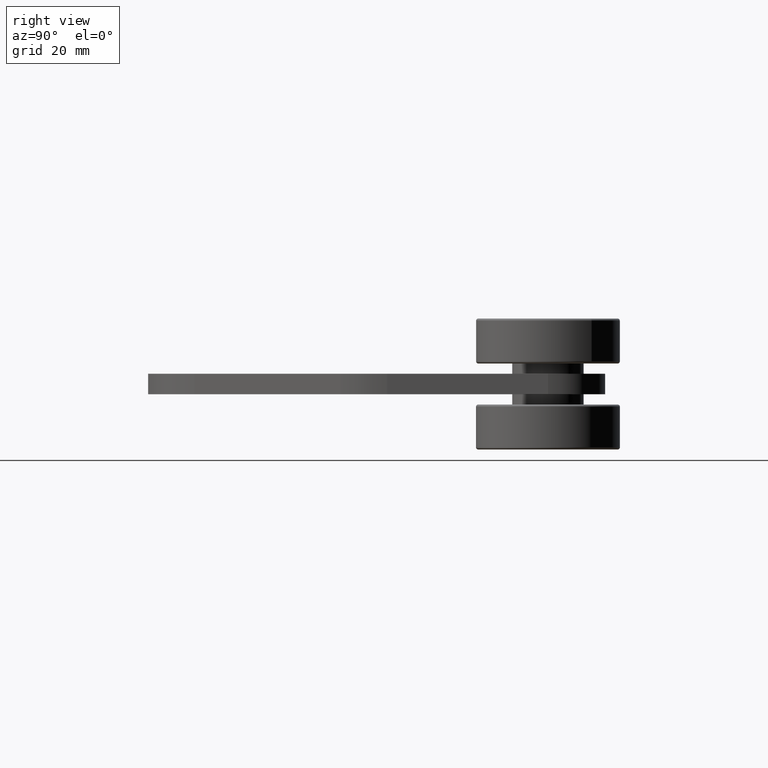
[diagram: clean part render]
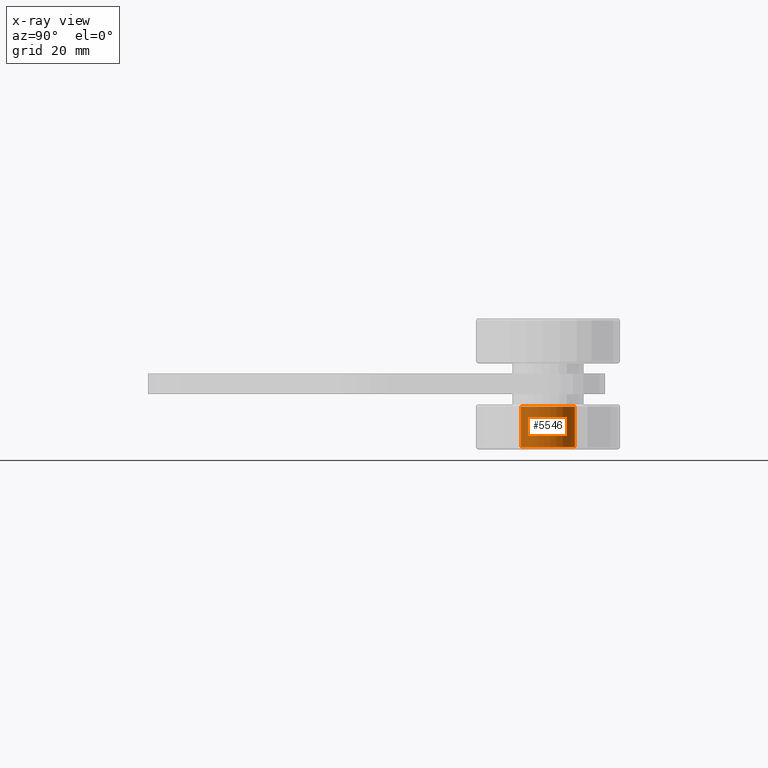
[diagram: x-ray — body ghosted, one internal face saturated and labeled with its STEP entity id]
A machine part, right view, then the same camera in x-ray: the body is ghosted and one INTERNAL B-rep face — a face not visible from any outside direction — is saturated and labeled: STEP entity #5546.
In plain terms, the highlighted cylindrical surface (bore or boss wall) has radius 6 mm, axis along (0, 0, 1).
Its self-contained STEP definition (entity closure, byte-faithful):
#5372=CARTESIAN_POINT('',(-1.972642721619665,1.421067559837466,-0.464015748031496));
#5373=VERTEX_POINT('',#5372);
#5374=CARTESIAN_POINT('',(-1.750000000000002,1.500000000000001,-0.464015748031496));
#5375=DIRECTION('',(0.0,0.0,1.0));
#5376=DIRECTION('',(0.942520854856576,0.334147330021399,0.0));
#5377=AXIS2_PLACEMENT_3D('',#5374,#5375,#5376);
#5378=CIRCLE('',#5377,0.236220472440945);
#5379=EDGE_CURVE('',#5373,#5373,#5378,.T.);
#5523=CARTESIAN_POINT('',(-1.972642721619665,1.421067559837466,-0.109685039370079));
#5524=VERTEX_POINT('',#5523);
#5525=CARTESIAN_POINT('',(-1.750000000000002,1.500000000000001,-0.109685039370079));
#5526=DIRECTION('',(0.0,0.0,-1.0));
#5527=DIRECTION('',(0.942520854856576,0.334147330021399,0.0));
#5528=AXIS2_PLACEMENT_3D('',#5525,#5526,#5527);
#5529=CIRCLE('',#5528,0.236220472440945);
#5530=EDGE_CURVE('',#5524,#5524,#5529,.T.);
#5535=CARTESIAN_POINT('',(-1.750000000000002,1.500000000000001,-0.503385826771654));
#5536=DIRECTION('',(0.0,0.0,1.0));
#5537=DIRECTION('',(-0.942520854856576,-0.334147330021399,0.0));
#5538=AXIS2_PLACEMENT_3D('',#5535,#5536,#5537);
#5539=CYLINDRICAL_SURFACE('',#5538,0.236220472440945);
#5540=ORIENTED_EDGE('',*,*,#5379,.F.);
#5541=EDGE_LOOP('',(#5540));
#5542=FACE_OUTER_BOUND('',#5541,.T.);
#5543=ORIENTED_EDGE('',*,*,#5530,.F.);
#5544=EDGE_LOOP('',(#5543));
#5545=FACE_BOUND('',#5544,.T.);
#5546=ADVANCED_FACE('',(#5542,#5545),#5539,.F.);